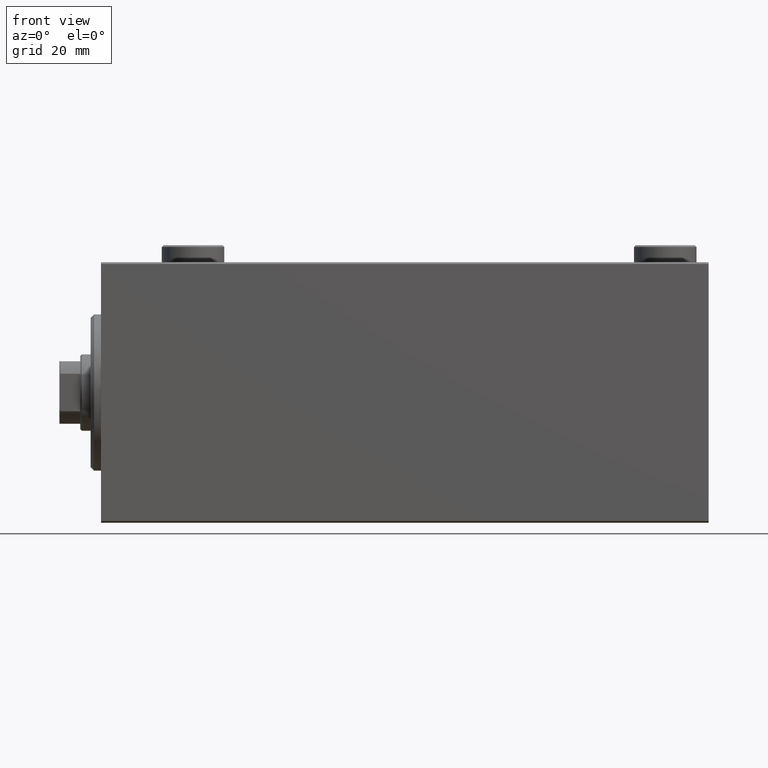
[diagram: clean part render]
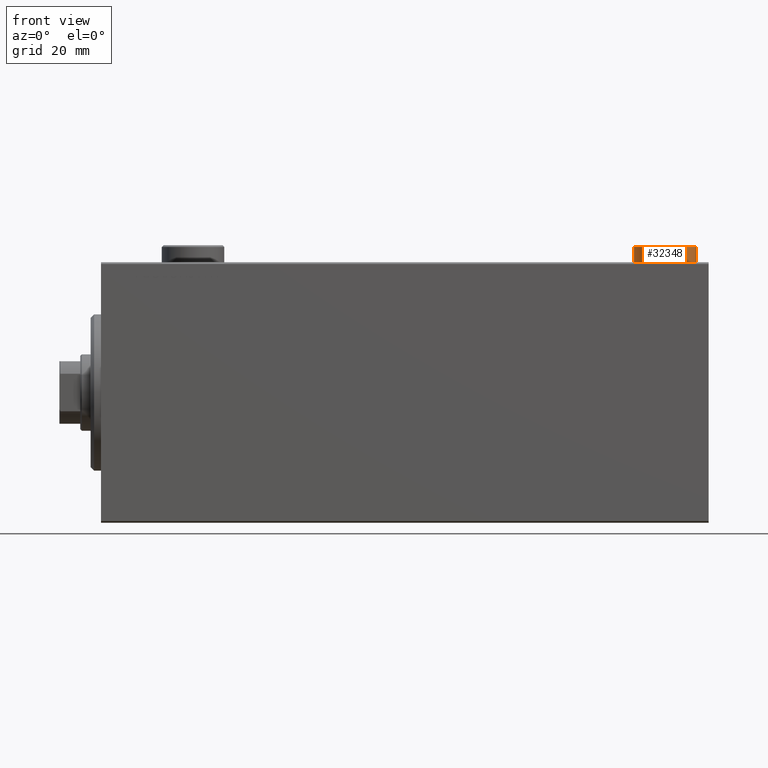
[diagram: same view with one face highlighted and labeled with its STEP entity id]
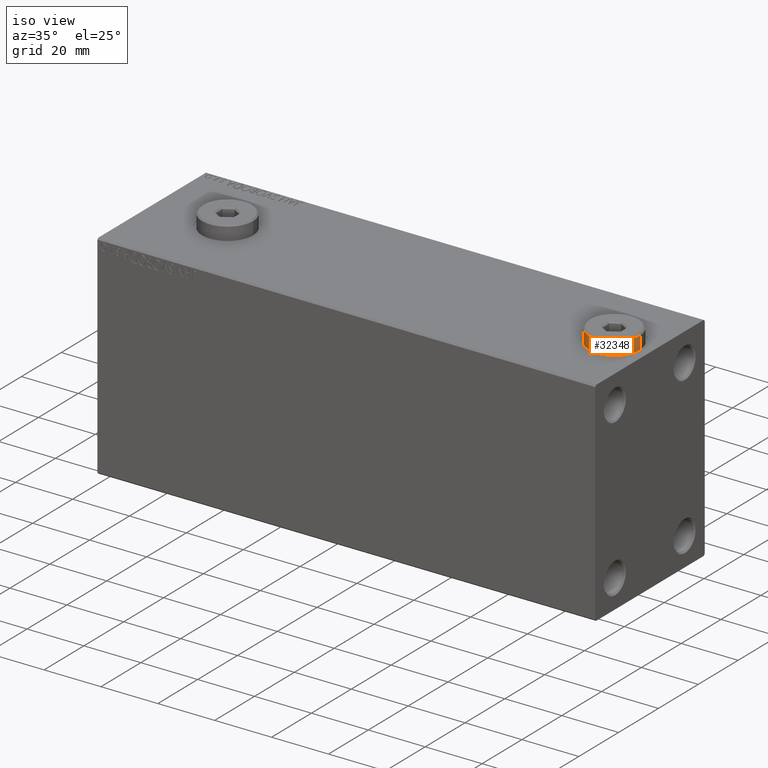
[diagram: same view with one face highlighted and labeled with its STEP entity id]
A machine part, front view. The second image highlights one B-rep face of the part: STEP entity #32348.
A second angle (iso view) of the same face is appended — the face is thin or edge-on in the first view.
In plain terms, the highlighted cylindrical surface (edge-blend (fillet) strip) has radius 9 mm, axis along (-0, -0, -1).
Its self-contained STEP definition (entity closure, byte-faithful):
#1588 = DIRECTION ( 'NONE',  ( -1.000000000000000000, 0.000000000000000000, 0.000000000000000000 ) ) ;
#2151 = VERTEX_POINT ( 'NONE', #13481 ) ;
#3205 = CARTESIAN_POINT ( 'NONE',  ( 0.000000000000000000, 0.000000000000000000, 0.000000000000000000 ) ) ;
#4210 = DIRECTION ( 'NONE',  ( 0.000000000000000000, 0.000000000000000000, -1.000000000000000000 ) ) ;
#4772 = AXIS2_PLACEMENT_3D ( 'NONE', #12640, #33174, #1588 ) ;
#7148 = EDGE_CURVE ( 'NONE', #10140, #10789, #23062, .T. ) ;
#7279 = LINE ( 'NONE', #24539, #34902 ) ;
#7720 = EDGE_CURVE ( 'NONE', #10140, #24810, #7279, .T. ) ;
#10140 = VERTEX_POINT ( 'NONE', #40234 ) ;
#10789 = VERTEX_POINT ( 'NONE', #18020 ) ;
#12640 = CARTESIAN_POINT ( 'NONE',  ( 0.000000000000000000, 0.000000000000000000, 5.000000000000000000 ) ) ;
#13481 = CARTESIAN_POINT ( 'NONE',  ( -9.000000000000001776, 0.000000000000000000, 0.000000000000000000 ) ) ;
#13495 = DIRECTION ( 'NONE',  ( -0.000000000000000000, -0.000000000000000000, -1.000000000000000000 ) ) ;
#18020 = CARTESIAN_POINT ( 'NONE',  ( -9.000000000000001776, 0.000000000000000000, 4.500000000000006217 ) ) ;
#18037 = DIRECTION ( 'NONE',  ( 1.000000000000000000, 0.000000000000000000, 0.000000000000000000 ) ) ;
#18739 = LINE ( 'NONE', #29343, #30794 ) ;
#19094 = FACE_OUTER_BOUND ( 'NONE', #29344, .T. ) ;
#20610 = CARTESIAN_POINT ( 'NONE',  ( 9.000000000000001776, 1.102182119232617911E-15, 0.000000000000000000 ) ) ;
#20938 = DIRECTION ( 'NONE',  ( 0.000000000000000000, 0.000000000000000000, 1.000000000000000000 ) ) ;
#23062 = CIRCLE ( 'NONE', #27469, 9.000000000000001776 ) ;
#23275 = EDGE_CURVE ( 'NONE', #2151, #24810, #24490, .T. ) ;
#24490 = CIRCLE ( 'NONE', #33366, 9.000000000000001776 ) ;
#24539 = CARTESIAN_POINT ( 'NONE',  ( 9.000000000000001776, 1.102182119232617911E-15, 5.000000000000000000 ) ) ;
#24810 = VERTEX_POINT ( 'NONE', #20610 ) ;
#25781 = CYLINDRICAL_SURFACE ( 'NONE', #4772, 9.000000000000001776 ) ;
#26785 = ORIENTED_EDGE ( 'NONE', *, *, #7148, .T. ) ;
#27389 = DIRECTION ( 'NONE',  ( 1.000000000000000000, 0.000000000000000000, 0.000000000000000000 ) ) ;
#27469 = AXIS2_PLACEMENT_3D ( 'NONE', #43153, #4210, #18037 ) ;
#29343 = CARTESIAN_POINT ( 'NONE',  ( -9.000000000000001776, 0.000000000000000000, 5.000000000000000000 ) ) ;
#29344 = EDGE_LOOP ( 'NONE', ( #31960, #26785, #43095, #32530 ) ) ;
#30794 = VECTOR ( 'NONE', #44542, 1000.000000000000000 ) ;
#31960 = ORIENTED_EDGE ( 'NONE', *, *, #7720, .F. ) ;
#32348 = ADVANCED_FACE ( 'NONE', ( #19094 ), #25781, .T. ) ;
#32530 = ORIENTED_EDGE ( 'NONE', *, *, #23275, .T. ) ;
#33174 = DIRECTION ( 'NONE',  ( -0.000000000000000000, -0.000000000000000000, -1.000000000000000000 ) ) ;
#33366 = AXIS2_PLACEMENT_3D ( 'NONE', #3205, #20938, #27389 ) ;
#34902 = VECTOR ( 'NONE', #13495, 1000.000000000000000 ) ;
#40234 = CARTESIAN_POINT ( 'NONE',  ( 9.000000000000001776, 1.102182119232617911E-15, 4.500000000000006217 ) ) ;
#43095 = ORIENTED_EDGE ( 'NONE', *, *, #44945, .T. ) ;
#43153 = CARTESIAN_POINT ( 'NONE',  ( 0.000000000000000000, 0.000000000000000000, 4.500000000000006217 ) ) ;
#44542 = DIRECTION ( 'NONE',  ( -0.000000000000000000, -0.000000000000000000, -1.000000000000000000 ) ) ;
#44945 = EDGE_CURVE ( 'NONE', #10789, #2151, #18739, .T. ) ;